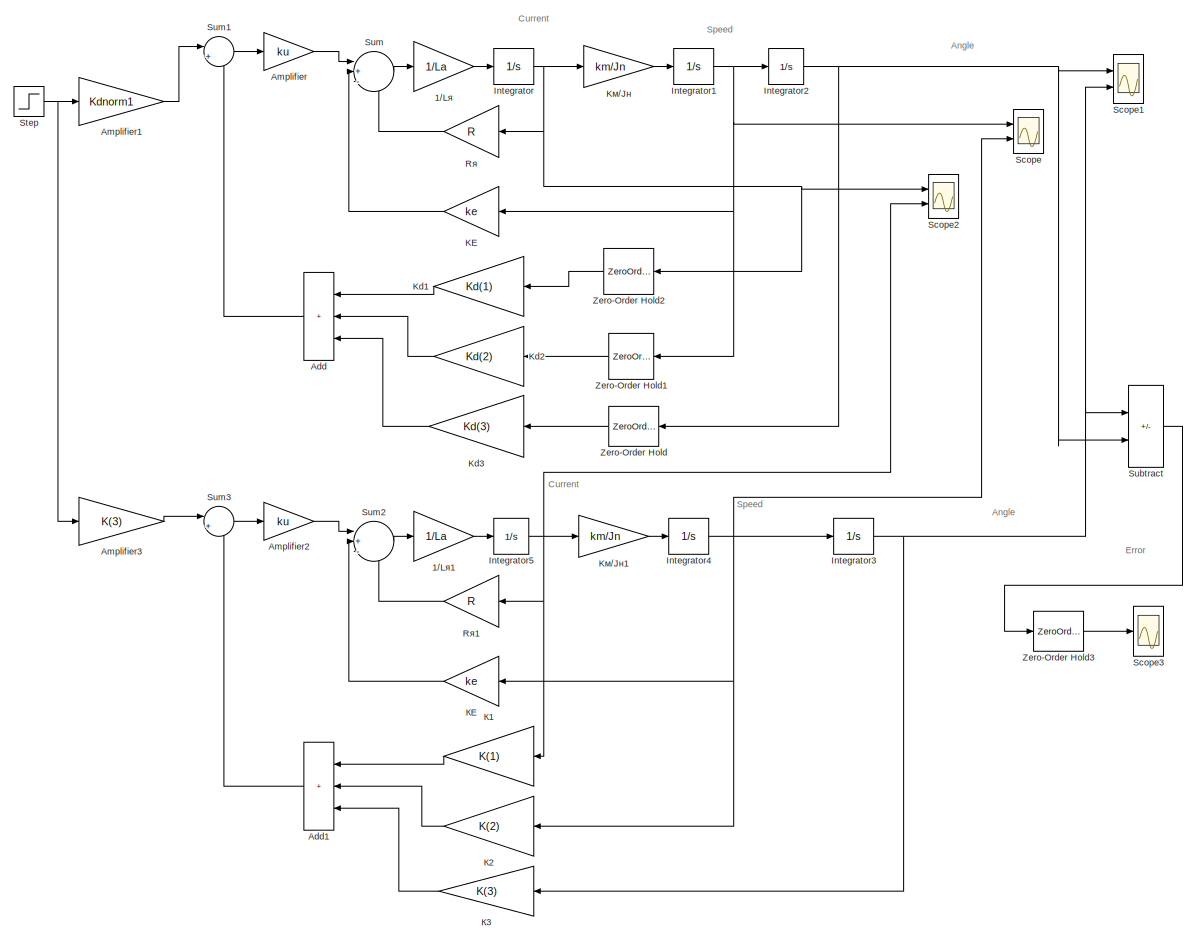
[diagram: root canvas - part 1/1, most of the canvas]
MODEL slx_b0f0ee1bded0
KIND model
CONFIG AbsTol = auto
CONFIG EnableMultiTasking = off
CONFIG FixedStep = 0.001
CONFIG MaxStep = auto
CONFIG MinStep = auto
CONFIG RelTol = 1e-3
CONFIG SampleTimeConstraint = Unconstrained
CONFIG SolverName = ode4
CONFIG StartTime = 0.0
CONFIG StopTime = 0.1
BLOCK [Gain] 1//Lя
  Gain = 1/La
BLOCK [Gain] 1//Lя1
  Gain = 1/La
BLOCK [Sum] Add
  IconShape = rectangular
  Inputs = +++
  Ports = [3, 1]
BLOCK [Sum] Add1
  IconShape = rectangular
  Inputs = +++
  Ports = [3, 1]
BLOCK [Gain] Amplifier
  Gain = ku
BLOCK [Gain] Amplifier1
  Gain = Kdnorm1
BLOCK [Gain] Amplifier2
  Gain = ku
BLOCK [Gain] Amplifier3
  Gain = K(3)
BLOCK [Integrator] Integrator
  Ports = [1, 1]
BLOCK [Integrator] Integrator1
  Ports = [1, 1]
BLOCK [Integrator] Integrator2
  Ports = [1, 1]
BLOCK [Integrator] Integrator3
  Ports = [1, 1]
BLOCK [Integrator] Integrator4
  Ports = [1, 1]
BLOCK [Integrator] Integrator5
  Ports = [1, 1]
BLOCK [Gain] KE
  Gain = ke
BLOCK [Gain] Kd1
  Gain = Kd(1)
BLOCK [Gain] Kd2
  Gain = Kd(2)
BLOCK [Gain] Kd3
  Gain = Kd(3)
BLOCK [Gain] Kм//Jн
  Gain = km/Jn
BLOCK [Gain] Kм//Jн1
  Gain = km/Jn
BLOCK [Gain] Rя
  Gain = R
BLOCK [Gain] Rя1
  Gain = R
BLOCK [Scope] Scope
  Floating = off
  NumInputPorts = 2
  Ports = [2]
  ScopeSpecificationString = Simulink.scopes.TimeScopeBlockCfg('CurrentConfiguration', extmgr.ConfigurationSet(extmgr.Configuration('Core','General UI',true),extmgr.Configuration('Core','Source UI',true),extmgr.Configuration('Sources','WiredSimulink',true,'DataLoggingSaveFormat','StructureWithTime','DataLoggingLimitDataPoints',true,'DataLoggingDecimation','1','DataLoggingDecimateData',true),extmgr.Configuration('Visuals','Tim...<+2260ch>
BLOCK [Scope] Scope1
  Floating = off
  NumInputPorts = 2
  Ports = [2]
  ScopeSpecificationString = Simulink.scopes.TimeScopeBlockCfg('CurrentConfiguration', extmgr.ConfigurationSet(extmgr.Configuration('Core','General UI',true,'FigureColor',[1 1 1]),extmgr.Configuration('Core','Source UI',true),extmgr.Configuration('Sources','WiredSimulink',true,'DataLoggingVariableName','ScopeData1','DataLoggingSaveFormat','StructureWithTime','DataLoggingLimitDataPoints',true,'DataLoggingDecimation','1','DataL...<+3950ch>
BLOCK [Scope] Scope2
  Floating = off
  NumInputPorts = 2
  Ports = [2]
  ScopeSpecificationString = Simulink.scopes.TimeScopeBlockCfg('CurrentConfiguration', extmgr.ConfigurationSet(extmgr.Configuration('Core','General UI',true),extmgr.Configuration('Core','Source UI',true),extmgr.Configuration('Sources','WiredSimulink',true,'DataLoggingVariableName','ScopeData2','DataLoggingSaveFormat','StructureWithTime','DataLoggingLimitDataPoints',true,'DataLoggingDecimation','1','DataLoggingDecimateData',tr...<+2291ch>
BLOCK [Scope] Scope3
  Floating = off
  NumInputPorts = 1
  Ports = [1]
  ScopeSpecificationString = Simulink.scopes.TimeScopeBlockCfg('CurrentConfiguration', extmgr.ConfigurationSet(extmgr.Configuration('Core','General UI',true,'FigureColor',[1 1 1],'DisplayFullSourceName',true),extmgr.Configuration('Core','Source UI',true),extmgr.Configuration('Sources','WiredSimulink',true,'DataLoggingVariableName','ScopeData3','DataLoggingSaveFormat','StructureWithTime','SampleTime','0.001','DataLoggingLimitD...<+1888ch>
BLOCK [Step] Step
  SampleTime = 0
  Time = 0
BLOCK [Sum] Subtract
  IconShape = rectangular
  Inputs = +-
  Ports = [2, 1]
BLOCK [Sum] Sum
  Inputs = |+--
  Ports = [3, 1]
BLOCK [Sum] Sum1
  Inputs = |+-
  Ports = [2, 1]
BLOCK [Sum] Sum2
  Inputs = |+--
  Ports = [3, 1]
BLOCK [Sum] Sum3
  Inputs = |+-
  Ports = [2, 1]
BLOCK [ZeroOrderHold] Zero-Order Hold
  SampleTime = 0.001
BLOCK [ZeroOrderHold] Zero-Order Hold1
  SampleTime = 0.001
BLOCK [ZeroOrderHold] Zero-Order Hold2
  SampleTime = 0.001
BLOCK [ZeroOrderHold] Zero-Order Hold3
  SampleTime = 0.001
BLOCK [Gain] К1
  Gain = K(1)
BLOCK [Gain] К2
  Gain = K(2)
BLOCK [Gain] К3
  Gain = K(3)
BLOCK [Gain] КЕ
  Gain = ke
ANNOTATION (root): Speed
ANNOTATION (root): Angle
ANNOTATION (root): Current
ANNOTATION (root): Error
LINE 1//Lя1:1 -> Integrator5:1
LINE 1//Lя:1 -> Integrator:1
LINE Add1:1 -> Sum3:2
LINE Add:1 -> Sum1:2
LINE Amplifier1:1 -> Sum1:1
LINE Amplifier2:1 -> Sum2:1
LINE Amplifier3:1 -> Sum3:1
LINE Amplifier:1 -> Sum:1
NET Integrator1:1 -> Integrator2:1, KE:1, Scope:1, Zero-Order Hold1:1
NET Integrator2:1 -> Scope1:1, Subtract:2, Zero-Order Hold:1
NET Integrator3:1 -> Scope1:2, Subtract:1, К3:1
NET Integrator4:1 -> Integrator3:1, Scope:2, К2:1, КЕ:1
NET Integrator5:1 -> Kм//Jн1:1, Rя1:1, Scope2:2, К1:1
NET Integrator:1 -> Kм//Jн:1, Rя:1, Scope2:1, Zero-Order Hold2:1
LINE KE:1 -> Sum:2
LINE Kd1:1 -> Add:1
LINE Kd2:1 -> Add:2
LINE Kd3:1 -> Add:3
LINE Kм//Jн1:1 -> Integrator4:1
LINE Kм//Jн:1 -> Integrator1:1
LINE Rя1:1 -> Sum2:3
LINE Rя:1 -> Sum:3
NET Step:1 -> Amplifier1:1, Amplifier3:1
LINE Subtract:1 -> Zero-Order Hold3:1
LINE Sum1:1 -> Amplifier:1
LINE Sum2:1 -> 1//Lя1:1
LINE Sum3:1 -> Amplifier2:1
LINE Sum:1 -> 1//Lя:1
LINE Zero-Order Hold1:1 -> Kd2:1
LINE Zero-Order Hold2:1 -> Kd1:1
LINE Zero-Order Hold3:1 -> Scope3:1
LINE Zero-Order Hold:1 -> Kd3:1
LINE К1:1 -> Add1:1
LINE К2:1 -> Add1:2
LINE К3:1 -> Add1:3
LINE КЕ:1 -> Sum2:2
note: NET lines group one-source signal fan-out (src -> all destinations, sorted); 1:1 wires keep LINE
